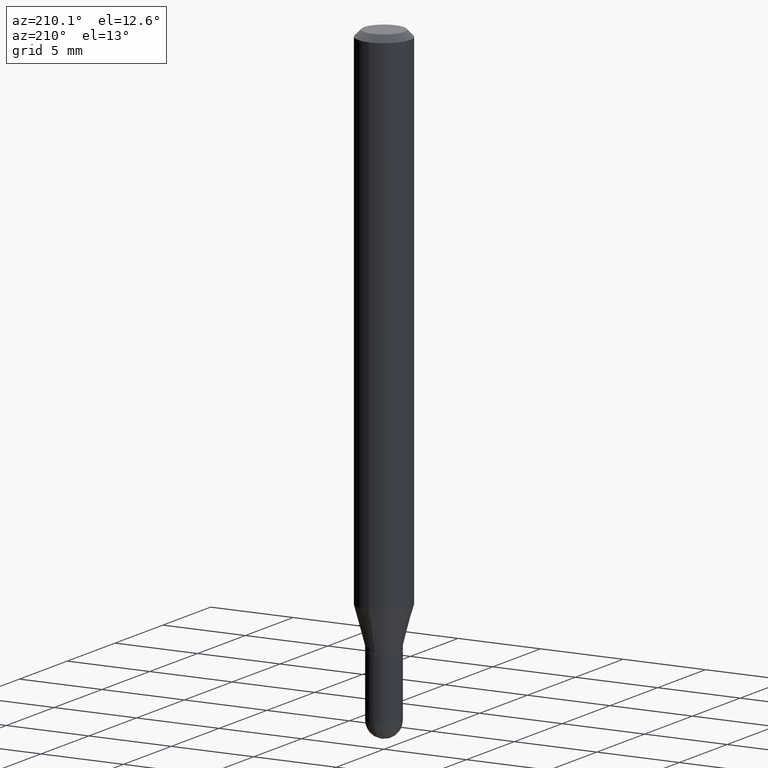
[diagram: clean part render]
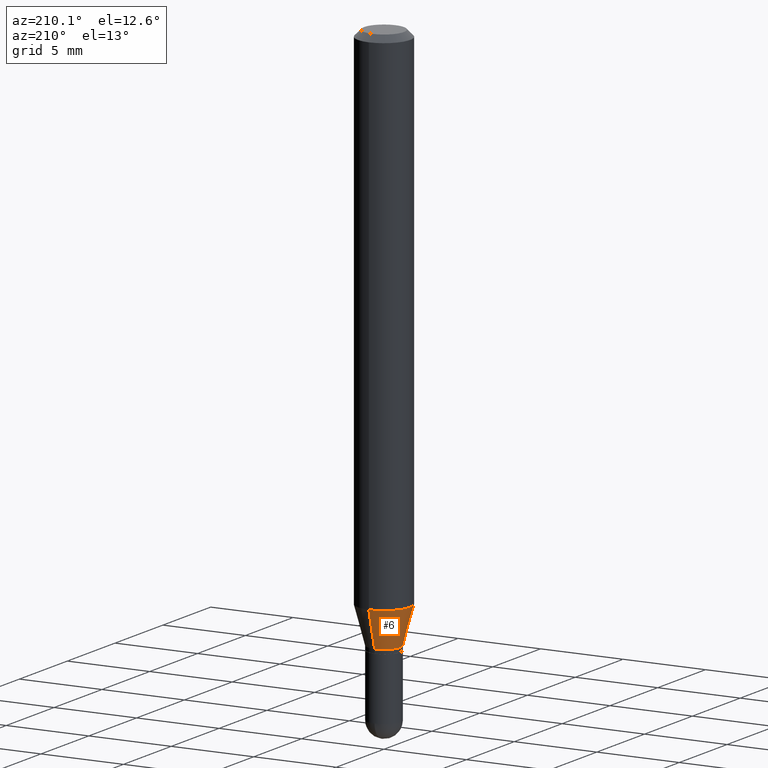
[diagram: same view with one face highlighted and labeled with its STEP entity id]
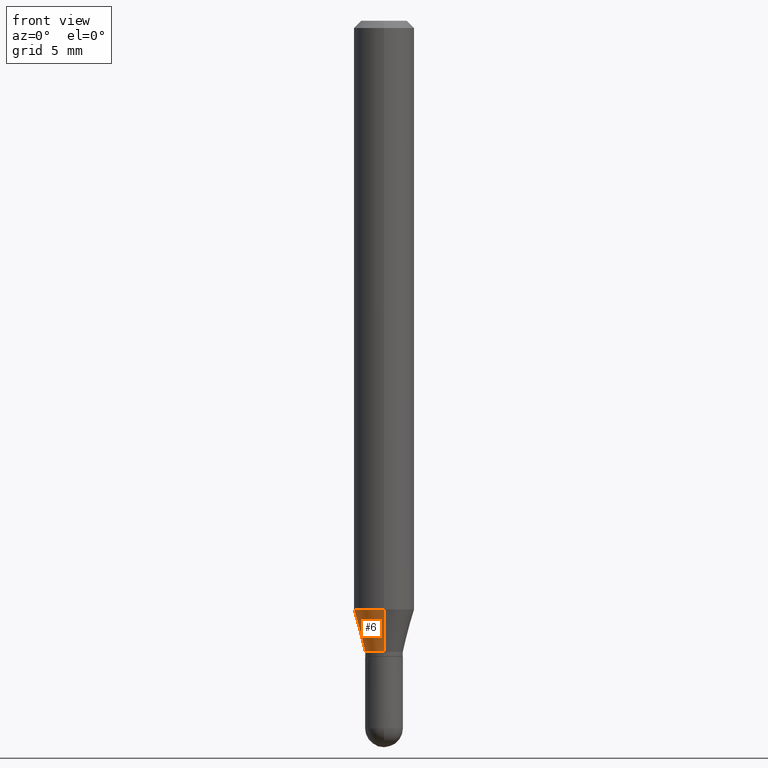
[diagram: same view with one face highlighted and labeled with its STEP entity id]
A machine part, auxiliary view. The second image highlights one B-rep face of the part: STEP entity #6.
A second angle (front view) of the same face is appended — the face is thin or edge-on in the first view.
In plain terms, the highlighted conical surface has half-angle 15 deg.
Its self-contained STEP definition (entity closure, byte-faithful):
#4 = DIRECTION ( 'NONE',  ( -6.982962677686265133E-15, -1.000000000000000000, 0.000000000000000000 ) ) ;
#5 = CARTESIAN_POINT ( 'NONE',  ( -2.726846925636162763E-16, -0.03905000000000447002, -1.302999999999999936 ) ) ;
#6 = ADVANCED_FACE ( 'NONE', ( #418 ), #76, .T. ) ;
#33 = CARTESIAN_POINT ( 'NONE',  ( 4.440892098500920012E-16, 0.06249999999999572564, -1.215483408562509915 ) ) ;
#65 = EDGE_LOOP ( 'NONE', ( #415, #219, #243, #333 ) ) ;
#71 = DIRECTION ( 'NONE',  ( -6.982962677686265133E-15, -1.000000000000000000, 0.000000000000000000 ) ) ;
#72 = DIRECTION ( 'NONE',  ( -1.807323732225327773E-15, -0.2588190451025178529, 0.9659258262890690894 ) ) ;
#76 = CONICAL_SURFACE ( 'NONE', #185, 0.03904999999999992505, 0.2617993877991499074 ) ;
#79 = CIRCLE ( 'NONE', #458, 0.06250000000000000000 ) ;
#86 = EDGE_CURVE ( 'NONE', #166, #454, #294, .T. ) ;
#122 = CARTESIAN_POINT ( 'NONE',  ( 3.186402176685208399E-29, -4.549462733571007534E-15, -1.302999999999999936 ) ) ;
#130 = DIRECTION ( 'NONE',  ( -2.445435285253421308E-29, 3.491529342725255167E-15, 1.000000000000000000 ) ) ;
#133 = EDGE_CURVE ( 'NONE', #166, #328, #309, .T. ) ;
#147 = CARTESIAN_POINT ( 'NONE',  ( 3.186402176685208399E-29, -4.549462733571007534E-15, -1.302999999999999936 ) ) ;
#148 = LINE ( 'NONE', #300, #483 ) ;
#157 = EDGE_CURVE ( 'NONE', #454, #251, #148, .T. ) ;
#159 = CARTESIAN_POINT ( 'NONE',  ( 2.774669383143503417E-16, 0.03904999999999537313, -1.302999999999999936 ) ) ;
#166 = VERTEX_POINT ( 'NONE', #212 ) ;
#185 = AXIS2_PLACEMENT_3D ( 'NONE', #147, #494, #71 ) ;
#190 = CARTESIAN_POINT ( 'NONE',  ( -4.364351673553621857E-16, -0.06250000000000427436, -1.215483408562509471 ) ) ;
#199 = CARTESIAN_POINT ( 'NONE',  ( 2.972386015938861663E-29, -4.243895986591712384E-15, -1.215483408562509693 ) ) ;
#212 = CARTESIAN_POINT ( 'NONE',  ( 3.607780740822213933E-16, 0.03904999999999537313, -1.302999999999999936 ) ) ;
#219 = ORIENTED_EDGE ( 'NONE', *, *, #86, .T. ) ;
#243 = ORIENTED_EDGE ( 'NONE', *, *, #157, .T. ) ;
#247 = AXIS2_PLACEMENT_3D ( 'NONE', #122, #509, #4 ) ;
#251 = VERTEX_POINT ( 'NONE', #190 ) ;
#294 = CIRCLE ( 'NONE', #247, 0.03904999999999992505 ) ;
#300 = CARTESIAN_POINT ( 'NONE',  ( -2.726846925636162763E-16, -0.03905000000000447002, -1.302999999999999936 ) ) ;
#309 = LINE ( 'NONE', #159, #343 ) ;
#312 = DIRECTION ( 'NONE',  ( 1.839019923739597554E-15, 0.2588190451025245697, 0.9659258262890670910 ) ) ;
#328 = VERTEX_POINT ( 'NONE', #33 ) ;
#333 = ORIENTED_EDGE ( 'NONE', *, *, #468, .F. ) ;
#343 = VECTOR ( 'NONE', #312, 39.37007874015748854 ) ;
#415 = ORIENTED_EDGE ( 'NONE', *, *, #133, .F. ) ;
#418 = FACE_OUTER_BOUND ( 'NONE', #65, .T. ) ;
#454 = VERTEX_POINT ( 'NONE', #5 ) ;
#458 = AXIS2_PLACEMENT_3D ( 'NONE', #199, #130, #508 ) ;
#468 = EDGE_CURVE ( 'NONE', #328, #251, #79, .T. ) ;
#483 = VECTOR ( 'NONE', #72, 39.37007874015748143 ) ;
#494 = DIRECTION ( 'NONE',  ( -2.445435285253421308E-29, 3.491529342725255167E-15, 1.000000000000000000 ) ) ;
#508 = DIRECTION ( 'NONE',  ( -6.982962677686265922E-15, -1.000000000000000000, 4.370956789862821150E-15 ) ) ;
#509 = DIRECTION ( 'NONE',  ( -2.445435285253421308E-29, 3.491529342725255167E-15, 1.000000000000000000 ) ) ;